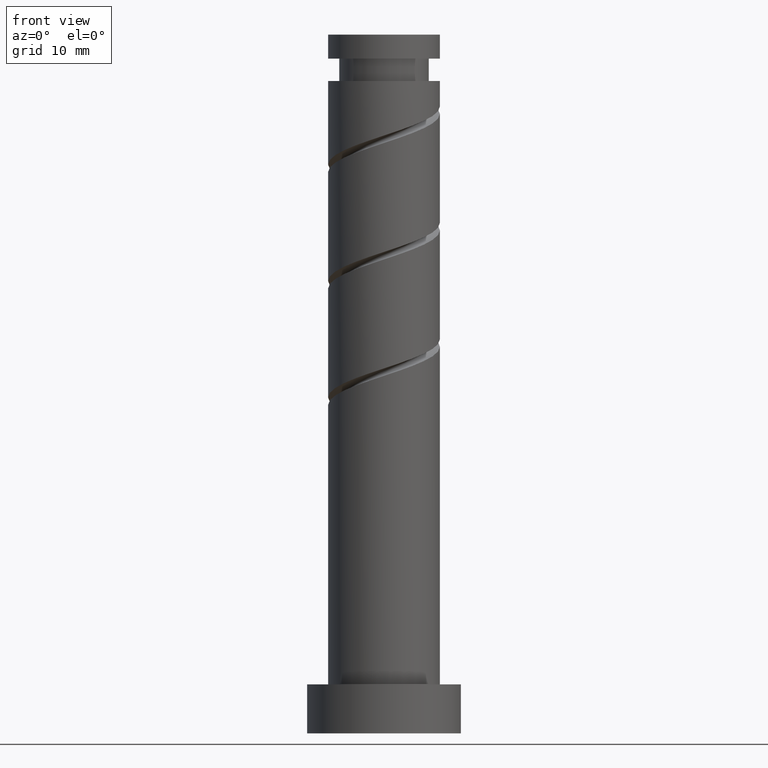
[diagram: clean part render]
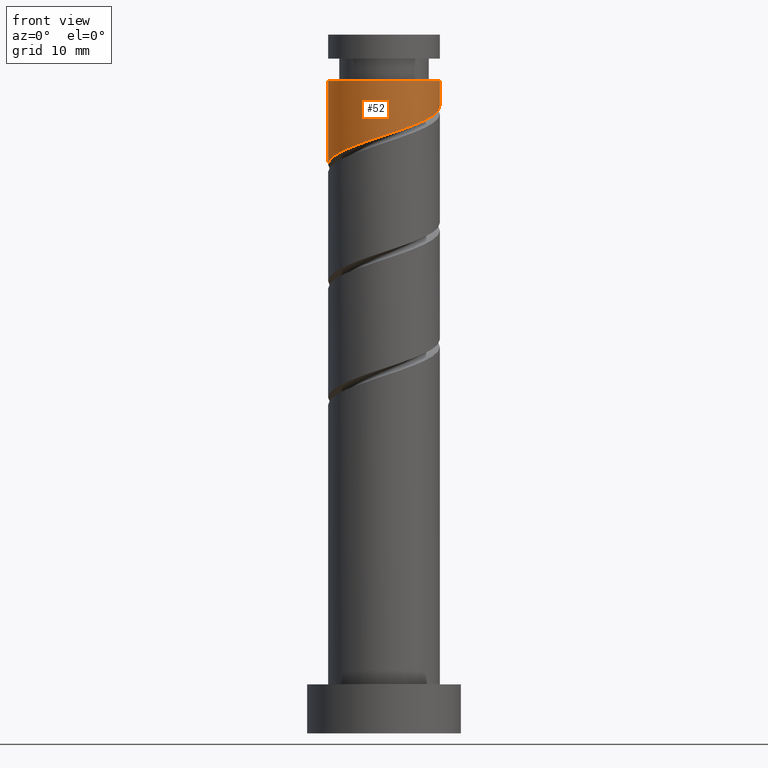
[diagram: same view with one face highlighted and labeled with its STEP entity id]
A machine part, front view. The second image highlights one B-rep face of the part: STEP entity #52.
In plain terms, the highlighted cylindrical surface (partial cylindrical patch) has radius 8 mm, axis along (-0, -0, -1).
Its self-contained STEP definition (entity closure, byte-faithful):
#3 = DIRECTION ( 'NONE',  ( -1.000000000000000000, 0.000000000000000000, 0.000000000000000000 ) ) ;
#5 = CARTESIAN_POINT ( 'NONE',  ( -5.380435946977605077, -6.086110916218999911, 83.65041641449940357 ) ) ;
#52 = ADVANCED_FACE ( 'NONE', ( #1146 ), #312, .T. ) ;
#53 = CARTESIAN_POINT ( 'NONE',  ( 7.997337192023797670, -0.2063924346310224700, 89.66893493301790841 ) ) ;
#59 = CARTESIAN_POINT ( 'NONE',  ( -8.000000000000000000, 0.000000000000000000, 100.0000000000000000 ) ) ;
#81 = CARTESIAN_POINT ( 'NONE',  ( 0.000000000000000000, 0.000000000000000000, 100.0000000000000000 ) ) ;
#88 = CARTESIAN_POINT ( 'NONE',  ( -8.000000000000000000, -4.810347228099804734E-15, 81.40349352504374281 ) ) ;
#114 = LINE ( 'NONE', #793, #1263 ) ;
#169 = CARTESIAN_POINT ( 'NONE',  ( 5.993649215984702572, -5.298695035169129319, 87.81708308116607498 ) ) ;
#253 = EDGE_CURVE ( 'NONE', #303, #1289, #1267, .T. ) ;
#287 = CARTESIAN_POINT ( 'NONE',  ( 1.185466159795203867, -7.911679340315834530, 85.96523122931424155 ) ) ;
#303 = VERTEX_POINT ( 'NONE', #468 ) ;
#312 = CYLINDRICAL_SURFACE ( 'NONE', #522, 8.000000000000000000 ) ;
#347 = CARTESIAN_POINT ( 'NONE',  ( -8.000000000000000000, -4.810347228099804734E-15, 81.40349352504374281 ) ) ;
#352 = DIRECTION ( 'NONE',  ( -0.000000000000000000, -0.000000000000000000, -1.000000000000000000 ) ) ;
#374 = EDGE_LOOP ( 'NONE', ( #538, #1085, #977, #1199 ) ) ;
#403 = CARTESIAN_POINT ( 'NONE',  ( 7.444448375207623592, -2.929195860448486677, 88.74300900709198459 ) ) ;
#468 = CARTESIAN_POINT ( 'NONE',  ( 8.000000000000001776, 2.016760483830663167E-15, 89.73682685837705719 ) ) ;
#516 = CARTESIAN_POINT ( 'NONE',  ( 3.819927504472515167, -7.029093388238227824, 86.89115715524016537 ) ) ;
#517 = AXIS2_PLACEMENT_3D ( 'NONE', #564, #1348, #923 ) ;
#522 = AXIS2_PLACEMENT_3D ( 'NONE', #81, #782, #3 ) ;
#538 = ORIENTED_EDGE ( 'NONE', *, *, #746, .F. ) ;
#547 = LINE ( 'NONE', #59, #591 ) ;
#564 = CARTESIAN_POINT ( 'NONE',  ( 0.000000000000000000, 0.000000000000000000, 93.37263863672161790 ) ) ;
#575 = CARTESIAN_POINT ( 'NONE',  ( -4.177409687551281614, -6.822700953607208518, 84.11337937746236548 ) ) ;
#591 = VECTOR ( 'NONE', #1230, 1000.000000000000000 ) ;
#611 = VERTEX_POINT ( 'NONE', #1012 ) ;
#682 = CARTESIAN_POINT ( 'NONE',  ( -1.591979899370592921, -7.839999999999999858, 85.03930530338828930 ) ) ;
#746 = EDGE_CURVE ( 'NONE', #883, #303, #114, .T. ) ;
#752 = CARTESIAN_POINT ( 'NONE',  ( -0.2095763706162292184, -8.120709009004581702, 85.50226826635122279 ) ) ;
#759 = CIRCLE ( 'NONE', #517, 8.000000000000001776 ) ;
#782 = DIRECTION ( 'NONE',  ( -0.000000000000000000, -0.000000000000000000, -1.000000000000000000 ) ) ;
#793 = CARTESIAN_POINT ( 'NONE',  ( 8.000000000000000000, 9.797174393178823685E-16, 100.0000000000000000 ) ) ;
#803 = CARTESIAN_POINT ( 'NONE',  ( -7.137528483847234817, -3.878856043515695351, 82.72449048857346554 ) ) ;
#877 = CARTESIAN_POINT ( 'NONE',  ( 2.580508690206633204, -7.702649671627087358, 86.42819419227714661 ) ) ;
#883 = VERTEX_POINT ( 'NONE', #1382 ) ;
#923 = DIRECTION ( 'NONE',  ( -1.000000000000000000, 0.000000000000000000, 0.000000000000000000 ) ) ;
#977 = ORIENTED_EDGE ( 'NONE', *, *, #1141, .T. ) ;
#988 = CARTESIAN_POINT ( 'NONE',  ( 5.059346318738396242, -6.355537104849367402, 87.35412011820309885 ) ) ;
#1012 = CARTESIAN_POINT ( 'NONE',  ( -8.000000000000001776, 0.000000000000000000, 93.37263863672161790 ) ) ;
#1037 = CARTESIAN_POINT ( 'NONE',  ( -7.999999999999996447, -1.304434974563658756, 81.83341303740934336 ) ) ;
#1085 = ORIENTED_EDGE ( 'NONE', *, *, #1233, .T. ) ;
#1096 = CARTESIAN_POINT ( 'NONE',  ( 7.960944637184241834, -1.616538755408090555, 89.20597197005493229 ) ) ;
#1141 = EDGE_CURVE ( 'NONE', #611, #1289, #547, .T. ) ;
#1146 = FACE_OUTER_BOUND ( 'NONE', #374, .T. ) ;
#1199 = ORIENTED_EDGE ( 'NONE', *, *, #253, .F. ) ;
#1208 = CARTESIAN_POINT ( 'NONE',  ( 6.927952113231005349, -4.241852965488890348, 88.28004604412899425 ) ) ;
#1230 = DIRECTION ( 'NONE',  ( -0.000000000000000000, -0.000000000000000000, -1.000000000000000000 ) ) ;
#1233 = EDGE_CURVE ( 'NONE', #883, #611, #759, .T. ) ;
#1263 = VECTOR ( 'NONE', #352, 1000.000000000000000 ) ;
#1267 =( BOUNDED_CURVE ( )  B_SPLINE_CURVE ( 2, ( #1428, #1325, #53, #1096, #403, #1208, #169, #988, #516, #877, #287, #752, #682, #1375, #575, #5, #1362, #803, #1272, #1037, #347 ),
 .UNSPECIFIED., .F., .T. ) 
 B_SPLINE_CURVE_WITH_KNOTS ( ( 3, 2, 2, 2, 2, 2, 2, 2, 2, 2, 3 ),
 ( 0.3045248053855290626, 0.3055555555555555802, 0.3194444444444444198, 0.3333333333333333148, 0.3472222222222222099, 0.3611111111111111049, 0.3750000000000000000, 0.3888888888888888951, 0.4027777777777777901, 0.4166666666666666852, 0.4295248053855290071 ),
 .UNSPECIFIED. ) 
 CURVE ( )  GEOMETRIC_REPRESENTATION_ITEM ( )  RATIONAL_B_SPLINE_CURVE ( ( 0.9071930855141199235, 0.9080659294509676460, 0.9090909090909077284, 0.8952797754656424134, 0.9090909090909077284, 0.8952797754656424134, 0.9090909090909077284, 0.8952797754656424134, 0.9090909090909077284, 0.8952797754656424134, 0.9090909090909077284, 0.8952797754656424134, 0.9090909090909077284, 0.8952797754656424134, 0.9090909090909077284, 0.8952797754656424134, 0.9090909090909077284, 0.8952797754656424134, 0.9090909090909077284, 0.8963047551055824957, 0.9071930855141200345 ) ) 
 REPRESENTATION_ITEM ( '' )  );
#1272 = CARTESIAN_POINT ( 'NONE',  ( -7.585629115355295049, -2.541304964830871427, 82.26152752561053205 ) ) ;
#1289 = VERTEX_POINT ( 'NONE', #88 ) ;
#1325 = CARTESIAN_POINT ( 'NONE',  ( 8.000000000000000000, -0.1032133946561690635, 89.70280948444468549 ) ) ;
#1348 = DIRECTION ( 'NONE',  ( -0.000000000000000000, -0.000000000000000000, -1.000000000000000000 ) ) ;
#1362 = CARTESIAN_POINT ( 'NONE',  ( -6.258982215412419947, -4.982483479867346077, 83.18745345153642745 ) ) ;
#1375 = CARTESIAN_POINT ( 'NONE',  ( -2.974383428124959483, -7.559290990995414461, 84.57634234042531318 ) ) ;
#1382 = CARTESIAN_POINT ( 'NONE',  ( 8.000000000000001776, 9.797174393178825657E-16, 93.37263863672161790 ) ) ;
#1428 = CARTESIAN_POINT ( 'NONE',  ( 8.000000000000001776, 2.016760483830663167E-15, 89.73682685837705719 ) ) ;